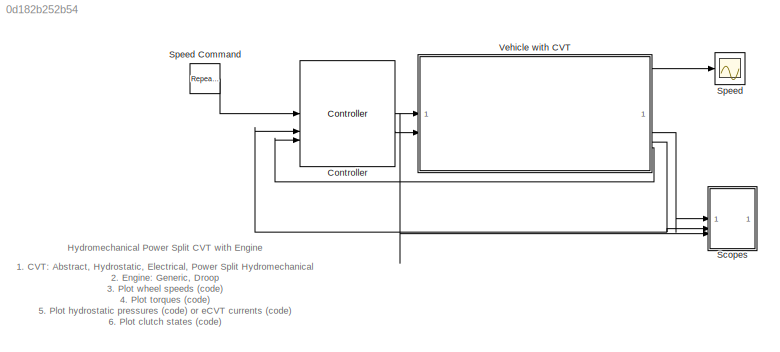
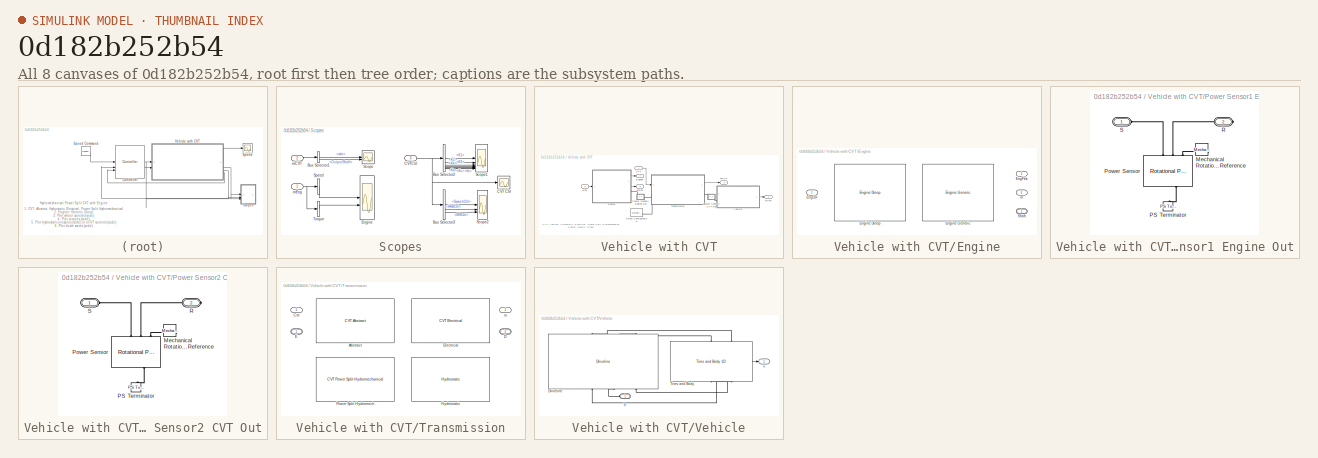
[diagram: thumbnail index - all 8 canvases of the model, root first then tree order]
MODEL slx_0d182b252b54
KIND model
CONFIG SolverName = VariableStepAuto
CONFIG StartFcn = tic
CONFIG StopFcn = Elapsed_Sim_Time = toc;\ndisp(['Elapsed Sim Time = ' num2str(Elapsed_Sim_Time)]);
CONFIG StopTime = 70
BLOCK [Reference] Controller  REF=sm_wheel_loader_lib/Controller  (lib defined in slx_2f13f0afc9e9, slx_78fdec152d5c)
  SourceBlock = sm_wheel_loader_lib/Controller
  SourceType = SubSystem
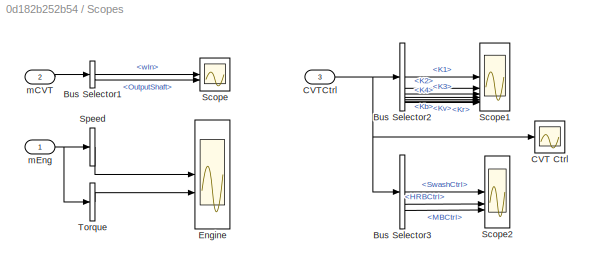
BLOCK [SubSystem] Scopes
BLOCK [BusSelector] Scopes/Bus Selector1
  OutputSignals = wIn,OutputShaft
BLOCK [BusSelector] Scopes/Bus Selector2
  NameLocation = top
  OutputSignals = K1,K2,K3,K4,Kb,Kv,Kr
BLOCK [BusSelector] Scopes/Bus Selector3
  OutputSignals = SwashCtrl,HRBCtrl,MBCtrl
BLOCK [Scope] Scopes/CVT Ctrl
  ActiveDisplayYMaximum = 1.21887
  ActiveDisplayYMinimum = -0.96987
  DataLoggingVariableName = ScopeData2
  Floating = off
  GraphicalSettings = {"GraphicalSettings":{"LegacySettings":true,"Style":{"AxesScalingProperties":{"ScaleAxesLimitsAtStop":false},"Style":{"AxesColor":"[0 0 0]","ChannelNames":[""],"ColorOrder":"[1 1 0.0666666666666667;0.0745098039215686 0.623529411764706 1;1 0.411764705882353 0.16078431372549;0.392156862745098 0.831372549019608 0.0745098039215686;0.717647058823529 0.274509803921569 1;0.0588235294117647 1 1;1 0.074509...<+659ch>
  MultipleDisplayCache = [{"MaxYLimMag":1.21887,"MaxYLimReal":1.21887,"MinYLimMag":0,"MinYLimReal":-0.96987,"PlotAsMagnitudePhase":false,"ShowGrid":true,"ShowLegend":true,"Title":"%<SignalLabel>","YLabel":""}]
  NumInputPorts = 1
  ShowLegend = on
  WasSavedAsWebScope = on
  WindowPosition = [16 507 898 448]
BLOCK [Inport] Scopes/CVTCtrl
  Port = 3
BLOCK [Scope] Scopes/Engine
  ActiveDisplayYMaximum = 2577.89969
  ActiveDisplayYMinimum = -286.4333
  DataLoggingVariableName = ScopeData1
  Floating = off
  GraphicalSettings = {"GraphicalSettings":{"LegacySettings":true,"Style":{"Style":{"AxesColor":"[0 0 0]","ChannelNames":["",""],"ColorOrder":"[1 1 0.0666666666666667;0.0745098039215686 0.623529411764706 1;1 0.411764705882353 0.16078431372549;0.392156862745098 0.831372549019608 0.0745098039215686;0.717647058823529 0.274509803921569 1;0.0588235294117647 1 1;1 0.0745098039215686 0.650980392156863]","CurrentConfiguration"...<+383ch>
  LayoutDimensionsString = [2 1]
  MultipleDisplayCache = [{"MaxYLimMag":2577.89969,"MaxYLimReal":2577.89969,"MinYLimMag":0,"MinYLimReal":-286.4333,"PlotAsMagnitudePhase":false,"ShowGrid":true,"ShowLegend":true,"Title":"%<SignalLabel>","YLabel":""},{"MaxYLimMag":10,"MaxYLimReal":4143.65382,"MinYLimMag":0,"MinYLimReal":-1002.68342,"PlotAsMagnitudePhase":false,"ShowGrid":true,"ShowLegend":true,"Title":"%<SignalLabel>","YLabel":""}]
  NumInputPorts = 2
  ShowLegend = on
  WasSavedAsWebScope = on
  WindowPosition = [721 330 519 463]
BLOCK [Scope] Scopes/Scope
  ActiveDisplayYMaximum = 1460.04785
  ActiveDisplayYMinimum = -1460.02488
  DataLoggingVariableName = ScopeData4
  Floating = off
  GraphicalSettings = {"GraphicalSettings":{"LegacySettings":true,"Style":{"Style":{"AxesColor":"[0 0 0]","ChannelNames":["",""],"ColorOrder":"[1 1 0.0666666666666667;0.0745098039215686 0.623529411764706 1;1 0.411764705882353 0.16078431372549;0.392156862745098 0.831372549019608 0.0745098039215686;0.717647058823529 0.274509803921569 1;0.0588235294117647 1 1;1 0.0745098039215686 0.650980392156863]","CurrentConfiguration"...<+374ch>
  LayoutDimensionsString = [2 1]
  MultipleDisplayCache = [{"MaxYLimMag":1460.04785,"MaxYLimReal":1460.04785,"MinYLimMag":0,"MinYLimReal":-1460.02488,"PlotAsMagnitudePhase":false,"ShowGrid":true,"ShowLegend":false,"Title":"%<SignalLabel>","YLabel":""},{"MaxYLimMag":10,"MaxYLimReal":11.77737,"MinYLimMag":0,"MinYLimReal":10.91361,"PlotAsMagnitudePhase":false,"ShowGrid":true,"ShowLegend":false,"Title":"%<SignalLabel>","YLabel":""}]
  NumInputPorts = 2
  WasSavedAsWebScope = on
  WindowPosition = [434 93 560 420]
BLOCK [Scope] Scopes/Scope1
  ActiveDisplayYMaximum = 1.125
  ActiveDisplayYMinimum = -0.125
  DataLoggingVariableName = ScopeData3
  Floating = off
  GraphicalSettings = {"GraphicalSettings":{"LegacySettings":true,"Style":{"Style":{"AxesColor":"[0 0 0]","ChannelNames":["","","","","","","",""],"ColorOrder":"[1 1 0.0666666666666667;0.0745098039215686 0.623529411764706 1;1 0.411764705882353 0.16078431372549;0.392156862745098 0.831372549019608 0.0745098039215686;0.717647058823529 0.274509803921569 1;0.0588235294117647 1 1;1 0.0745098039215686 0.650980392156863]","Cur...<+586ch>
  LayoutDimensionsString = [4 2]
  MultipleDisplayCache = [{"MaxYLimMag":1.125,"MaxYLimReal":1.125,"MinYLimMag":0,"MinYLimReal":-0.125,"PlotAsMagnitudePhase":false,"ShowGrid":true,"ShowLegend":false,"Title":"%<SignalLabel>","YLabel":""},{"MaxYLimMag":10,"MaxYLimReal":1.125,"MinYLimMag":0,"MinYLimReal":-0.125,"PlotAsMagnitudePhase":false,"ShowGrid":true,"ShowLegend":false,"Title":"%<SignalLabel>","YLabel":""},{"MaxYLimMag":10,"MaxYLimReal":1.125,"MinYLimM...<+976ch>
  NumInputPorts = 7
  WasSavedAsWebScope = on
BLOCK [Scope] Scopes/Scope2
  ActiveDisplayYMaximum = 1.21887
  ActiveDisplayYMinimum = -0.96987
  DataLoggingVariableName = ScopeData4
  Floating = off
  GraphicalSettings = {"GraphicalSettings":{"LegacySettings":true,"Style":{"Style":{"AxesColor":"[0 0 0]","ChannelNames":[""],"ColorOrder":"[1 1 0.0666666666666667;0.0745098039215686 0.623529411764706 1;1 0.411764705882353 0.16078431372549;0.392156862745098 0.831372549019608 0.0745098039215686;0.717647058823529 0.274509803921569 1;0.0588235294117647 1 1;1 0.0745098039215686 0.650980392156863]","CurrentConfiguration":"e...<+384ch>
  MultipleDisplayCache = [{"MaxYLimMag":1.21887,"MaxYLimReal":1.21887,"MinYLimMag":0,"MinYLimReal":-0.96987,"PlotAsMagnitudePhase":false,"ShowGrid":true,"ShowLegend":false,"Title":"%<SignalLabel>","YLabel":""}]
  NumInputPorts = 3
  WasSavedAsWebScope = on
BLOCK [BusSelector] Scopes/Speed
  OutputAsBus = on
  OutputSignals = w.cmd,w.meas
BLOCK [BusSelector] Scopes/Torque
  OutputAsBus = on
  OutputSignals = trq.Cmd
BLOCK [Inport] Scopes/mCVT
  Port = 2
BLOCK [Inport] Scopes/mEng
BLOCK [Scope] Speed
  ActiveDisplayYMaximum = 9.37302
  ActiveDisplayYMinimum = -9.37204
  DataLoggingVariableName = ScopeData1
  Floating = off
  GraphicalSettings = {"GraphicalSettings":{"LegacySettings":true,"Style":{"Style":{"AxesColor":"[0 0 0]","ChannelNames":[""],"ColorOrder":"[1 0.909803921568627 0.392156862745098;0.149019607843137 0.549019607843137 0.866666666666667;0.96078431372549 0.466666666666667 0.16078431372549;0.286274509803922 0.858823529411765 0.250980392156863;0.752941176470588 0.36078431372549 0.984313725490196;0.423529411764706 0.9568627450...<+432ch>
  MultipleDisplayCache = [{"MaxYLimMag":9.37302,"MaxYLimReal":9.37302,"MinYLimMag":0,"MinYLimReal":-9.37204,"PlotAsMagnitudePhase":false,"ShowGrid":true,"ShowLegend":false,"Title":"%<SignalLabel>","YLabel":""}]
  NumInputPorts = 1
  WasSavedAsWebScope = on
  WindowPosition = [1057 569 560 420]
BLOCK [Reference] Speed Command  REF=simulink/Sources/Repeating
Sequence
  SourceBlock = simulink/Sources/Repeating\nSequence
  SourceType = Repeating table
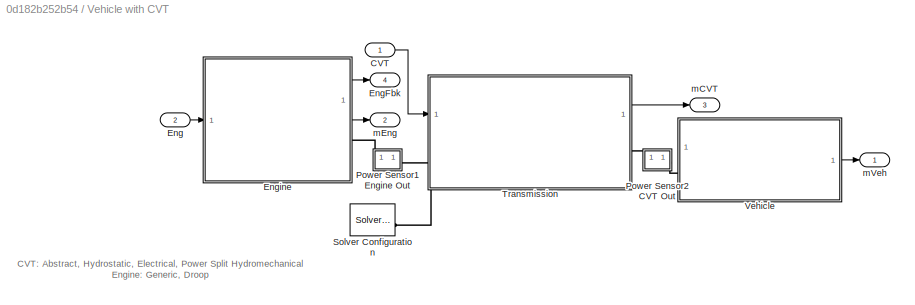
BLOCK [SubSystem] Vehicle with CVT
BLOCK [Inport] Vehicle with CVT/CVT
  NameLocation = top
BLOCK [Inport] Vehicle with CVT/Eng
  Port = 2
BLOCK [Outport] Vehicle with CVT/EngFbk
  Port = 4
BLOCK [SubSystem] Vehicle with CVT/Engine
  AttributesFormatString = %<LabelModeActiveChoice>
  LabelModeActiveChoice = Droop
  Variant = on
  VariantControl = Choice
  VariantControlMode = label
BLOCK [Inport] Vehicle with CVT/Engine/EngCtrl
BLOCK [Outport] Vehicle with CVT/Engine/EngFbk
BLOCK [Reference] Vehicle with CVT/Engine/Engine Droop  REF=sm_wheel_loader_lib/Engine Droop  (lib defined in slx_2f13f0afc9e9, slx_78fdec152d5c)
  SourceBlock = sm_wheel_loader_lib/Engine Droop
BLOCK [Reference] Vehicle with CVT/Engine/Engine Generic  REF=sm_wheel_loader_lib/Engine Generic  (lib defined in slx_2f13f0afc9e9, slx_78fdec152d5c)
  SourceBlock = sm_wheel_loader_lib/Engine Generic
BLOCK [PMIOPort] Vehicle with CVT/Engine/Shaft
  Side = Right
BLOCK [Outport] Vehicle with CVT/Engine/m
  Port = 2
BLOCK [SubSystem] Vehicle with CVT/Power Sensor1 Engine Out
BLOCK [Reference] Vehicle with CVT/Power Sensor1 Engine Out/Mechanical Rotational Reference  REF=fl_lib/Mechanical/Rotational Elements/Mechanical
Rotational Reference
  NameLocation = top
  SourceBlock = fl_lib/Mechanical/Rotational Elements/Mechanical\nRotational Reference
  SourceType = Mechanical\nRotational Reference
BLOCK [Reference] Vehicle with CVT/Power Sensor1 Engine Out/PS Terminator  REF=fl_lib/Physical Signals/Sinks/PS Terminator
  NameLocation = left
  SourceBlock = fl_lib/Physical Signals/Sinks/PS Terminator
  SourceType = PS Terminator
BLOCK [Reference] Vehicle with CVT/Power Sensor1 Engine Out/Power Sensor  REF=sdl_lib/Sensors/Rotational Power
Sensor
  NameLocation = left
  SourceBlock = sdl_lib/Sensors/Rotational Power\nSensor
  SourceType = Rotational Power\nSensor
BLOCK [PMIOPort] Vehicle with CVT/Power Sensor1 Engine Out/R
  Port = 2
  Side = Right
BLOCK [PMIOPort] Vehicle with CVT/Power Sensor1 Engine Out/S
  Side = Left
BLOCK [SubSystem] Vehicle with CVT/Power Sensor2 CVT Out
BLOCK [Reference] Vehicle with CVT/Power Sensor2 CVT Out/Mechanical Rotational Reference  REF=fl_lib/Mechanical/Rotational Elements/Mechanical
Rotational Reference
  NameLocation = top
  SourceBlock = fl_lib/Mechanical/Rotational Elements/Mechanical\nRotational Reference
  SourceType = Mechanical\nRotational Reference
BLOCK [Reference] Vehicle with CVT/Power Sensor2 CVT Out/PS Terminator  REF=fl_lib/Physical Signals/Sinks/PS Terminator
  NameLocation = left
  SourceBlock = fl_lib/Physical Signals/Sinks/PS Terminator
  SourceType = PS Terminator
BLOCK [Reference] Vehicle with CVT/Power Sensor2 CVT Out/Power Sensor  REF=sdl_lib/Sensors/Rotational Power
Sensor
  NameLocation = left
  SourceBlock = sdl_lib/Sensors/Rotational Power\nSensor
  SourceType = Rotational Power\nSensor
BLOCK [PMIOPort] Vehicle with CVT/Power Sensor2 CVT Out/R
  Port = 2
  Side = Right
BLOCK [PMIOPort] Vehicle with CVT/Power Sensor2 CVT Out/S
  Side = Left
BLOCK [Reference] Vehicle with CVT/Solver Configuration  REF=nesl_utility/Solver
Configuration
  SourceBlock = nesl_utility/Solver\nConfiguration
  SourceType = Solver\nConfiguration
BLOCK [SubSystem] Vehicle with CVT/Transmission
  AttributesFormatString = %<LabelModeActiveChoice>
  LabelModeActiveChoice = Abstract
  Variant = on
  VariantControl = Choice
  VariantControlMode = label
BLOCK [Reference] Vehicle with CVT/Transmission/Abstract  REF=sm_wheel_loader_lib/CVT Abstract  (lib defined in slx_2f13f0afc9e9, slx_78fdec152d5c)
  SourceBlock = sm_wheel_loader_lib/CVT Abstract
  SourceType = Continuously Variable Transmission (Abstract)
BLOCK [Inport] Vehicle with CVT/Transmission/Ctrl
BLOCK [PMIOPort] Vehicle with CVT/Transmission/D
  Port = 2
  Side = Right
BLOCK [PMIOPort] Vehicle with CVT/Transmission/E
  Side = Left
BLOCK [Reference] Vehicle with CVT/Transmission/Electrical  REF=sm_wheel_loader_lib/CVT Electrical  (lib defined in slx_2f13f0afc9e9, slx_78fdec152d5c)
  SourceBlock = sm_wheel_loader_lib/CVT Electrical
  SourceType = Electrical Continuously Variable Transmission (eCVT)
BLOCK [Reference] Vehicle with CVT/Transmission/Hydrostatic  REF=sm_wheel_loader_lib/Hydrostatic  (lib defined in slx_2f13f0afc9e9, slx_78fdec152d5c)
  SourceBlock = sm_wheel_loader_lib/Hydrostatic
BLOCK [Reference] Vehicle with CVT/Transmission/Power Split Hydromech  REF=sm_wheel_loader_lib/CVT Power Split Hydromechanical  (lib defined in slx_2f13f0afc9e9, slx_78fdec152d5c)
  LibrarySourceBlock = sm_wheel_loader_lib/CVT Powersplit Hydromechanical
  SourceBlock = sm_wheel_loader_lib/CVT Power Split Hydromechanical
BLOCK [Outport] Vehicle with CVT/Transmission/m
BLOCK [SubSystem] Vehicle with CVT/Vehicle
BLOCK [Reference] Vehicle with CVT/Vehicle/Driveline  REF=sm_wheel_loader_lib/Wheel Loader Vehicle/Driveline/Driveline/Driveline 1D/Driveline  (lib defined in slx_2f13f0afc9e9, slx_78fdec152d5c)
  NameLocation = top
  SourceBlock = sm_wheel_loader_lib/Wheel Loader Vehicle/Driveline/Driveline/Driveline 1D/Driveline
BLOCK [Reference] Vehicle with CVT/Vehicle/Tires and Body  REF=sm_wheel_loader_lib/Tires and Body 1D  (lib defined in slx_2f13f0afc9e9, slx_78fdec152d5c)
  NameLocation = top
  SourceBlock = sm_wheel_loader_lib/Tires and Body 1D
BLOCK [PMIOPort] Vehicle with CVT/Vehicle/Tr
  Side = Left
BLOCK [Outport] Vehicle with CVT/Vehicle/v
BLOCK [Outport] Vehicle with CVT/mCVT
  NameLocation = top
  Port = 3
BLOCK [Outport] Vehicle with CVT/mEng
  Port = 2
BLOCK [Outport] Vehicle with CVT/mVeh
ANNOTATION (root): 1. CVT: Abstract , Hydrostatic , Electrical , Power Split Hydromechanical 2. Engine: Generic , Droop 3. Plot wheel speeds ( code ) 4. Plot torques ( code ) 5. Plot hydrostatic pressures ( code ) or eCVT currents ( code ) 6. Plot clutch states ( code ) 7. Explore simulation results using sscexplore 8. Learn more about this example
ANNOTATION (root): Hydromechanical Power Split CVT with Engine
ANNOTATION Vehicle with CVT: CVT: Abstract , Hydrostatic , Electrical , Power Split Hydromechanical Engine: Generic , Droop
NET Controller:1 -> Scopes:3, Vehicle with CVT:1
LINE Controller:2 -> Vehicle with CVT:2
LINE Scopes/Bus Selector1:1 -> Scopes/Scope:1
LINE Scopes/Bus Selector1:2 -> Scopes/Scope:2
LINE Scopes/Bus Selector2:1 -> Scopes/Scope1:1
LINE Scopes/Bus Selector2:2 -> Scopes/Scope1:2
LINE Scopes/Bus Selector2:3 -> Scopes/Scope1:3
LINE Scopes/Bus Selector2:4 -> Scopes/Scope1:4
LINE Scopes/Bus Selector2:5 -> Scopes/Scope1:5
LINE Scopes/Bus Selector2:6 -> Scopes/Scope1:6
LINE Scopes/Bus Selector2:7 -> Scopes/Scope1:7
LINE Scopes/Bus Selector3:1 -> Scopes/Scope2:1
LINE Scopes/Bus Selector3:2 -> Scopes/Scope2:2
LINE Scopes/Bus Selector3:3 -> Scopes/Scope2:3
NET Scopes/CVTCtrl:1 -> Scopes/Bus Selector2:1, Scopes/Bus Selector3:1, Scopes/CVT Ctrl:1
LINE Scopes/Speed:1 -> Scopes/Engine:1
LINE Scopes/Torque:1 -> Scopes/Engine:2
LINE Scopes/mCVT:1 -> Scopes/Bus Selector1:1
NET Scopes/mEng:1 -> Scopes/Speed:1, Scopes/Torque:1
LINE Speed Command:1 -> Controller:1
LINE Vehicle with CVT/CVT:1 -> Vehicle with CVT/Transmission:1
LINE Vehicle with CVT/Eng:1 -> Vehicle with CVT/Engine:1
LINE Vehicle with CVT/Engine:1 -> Vehicle with CVT/EngFbk:1
LINE Vehicle with CVT/Engine:2 -> Vehicle with CVT/mEng:1
LINE Vehicle with CVT/Transmission:1 -> Vehicle with CVT/mCVT:1
LINE Vehicle with CVT/Vehicle/Tires and Body:1 -> Vehicle with CVT/Vehicle/v:1
LINE Vehicle with CVT/Vehicle:1 -> Vehicle with CVT/mVeh:1
LINE Vehicle with CVT:1 -> Speed:1
LINE Vehicle with CVT:2 -> Scopes:1
NET Vehicle with CVT:3 -> Controller:2, Scopes:2
LINE Vehicle with CVT:4 -> Controller:3
PLINE Vehicle with CVT/Engine:RConn1 -- Vehicle with CVT/Power Sensor1 Engine Out:LConn1
PLINE Vehicle with CVT/Power Sensor1 Engine Out/Mechanical Rotational Reference:LConn1 -- Vehicle with CVT/Power Sensor1 Engine Out/Power Sensor:LConn3
PLINE Vehicle with CVT/Power Sensor1 Engine Out/PS Terminator:LConn1 -- Vehicle with CVT/Power Sensor1 Engine Out/Power Sensor:RConn1
PLINE Vehicle with CVT/Power Sensor1 Engine Out/Power Sensor:LConn1 -- Vehicle with CVT/Power Sensor1 Engine Out/S:RConn1
PLINE Vehicle with CVT/Power Sensor1 Engine Out/Power Sensor:LConn2 -- Vehicle with CVT/Power Sensor1 Engine Out/R:RConn1
PNET net1: Vehicle with CVT/Power Sensor1 Engine Out:RConn1 -- Vehicle with CVT/Solver Configuration:RConn1 -- Vehicle with CVT/Transmission:LConn1
PLINE Vehicle with CVT/Power Sensor2 CVT Out/Mechanical Rotational Reference:LConn1 -- Vehicle with CVT/Power Sensor2 CVT Out/Power Sensor:LConn3
PLINE Vehicle with CVT/Power Sensor2 CVT Out/PS Terminator:LConn1 -- Vehicle with CVT/Power Sensor2 CVT Out/Power Sensor:RConn1
PLINE Vehicle with CVT/Power Sensor2 CVT Out/Power Sensor:LConn1 -- Vehicle with CVT/Power Sensor2 CVT Out/S:RConn1
PLINE Vehicle with CVT/Power Sensor2 CVT Out/Power Sensor:LConn2 -- Vehicle with CVT/Power Sensor2 CVT Out/R:RConn1
PLINE Vehicle with CVT/Power Sensor2 CVT Out:LConn1 -- Vehicle with CVT/Transmission:RConn1
PLINE Vehicle with CVT/Power Sensor2 CVT Out:RConn1 -- Vehicle with CVT/Vehicle:LConn1
PLINE Vehicle with CVT/Vehicle/Driveline:LConn1 -- Vehicle with CVT/Vehicle/Tires and Body:LConn2
PLINE Vehicle with CVT/Vehicle/Driveline:LConn3 -- Vehicle with CVT/Vehicle/Tires and Body:LConn1
PLINE Vehicle with CVT/Vehicle/Driveline:RConn1 -- Vehicle with CVT/Vehicle/Tires and Body:RConn2
PLINE Vehicle with CVT/Vehicle/Driveline:RConn2 -- Vehicle with CVT/Vehicle/Tr:RConn1
PLINE Vehicle with CVT/Vehicle/Driveline:RConn3 -- Vehicle with CVT/Vehicle/Tires and Body:RConn1
note: NET lines group one-source signal fan-out (src -> all destinations, sorted); 1:1 wires keep LINE; PNET lines group multi-terminal physical nets as a canonical sorted terminal list (undirected conserving connections); 2-terminal nets keep the pairwise PLINE form
